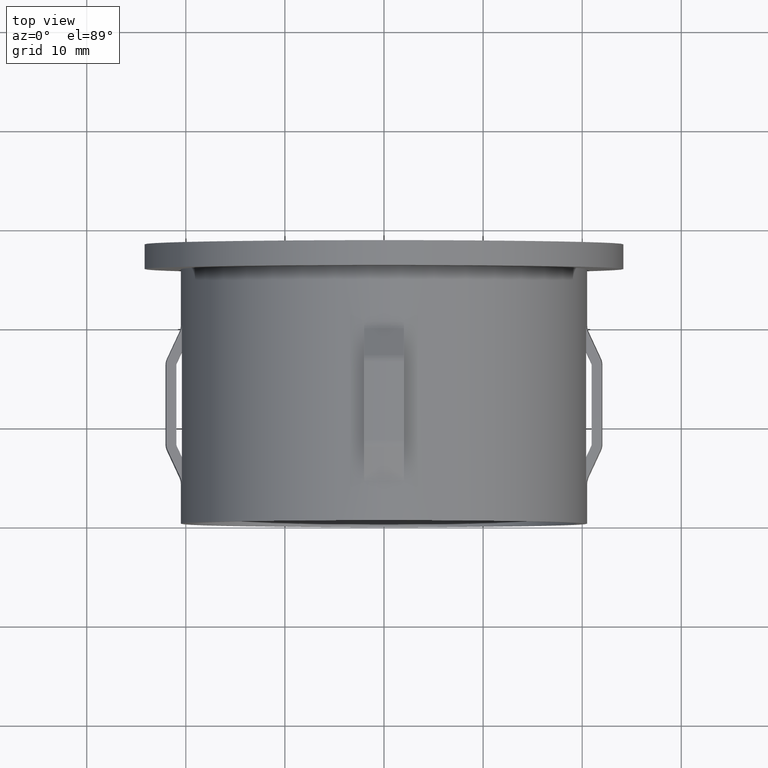
[diagram: clean part render]
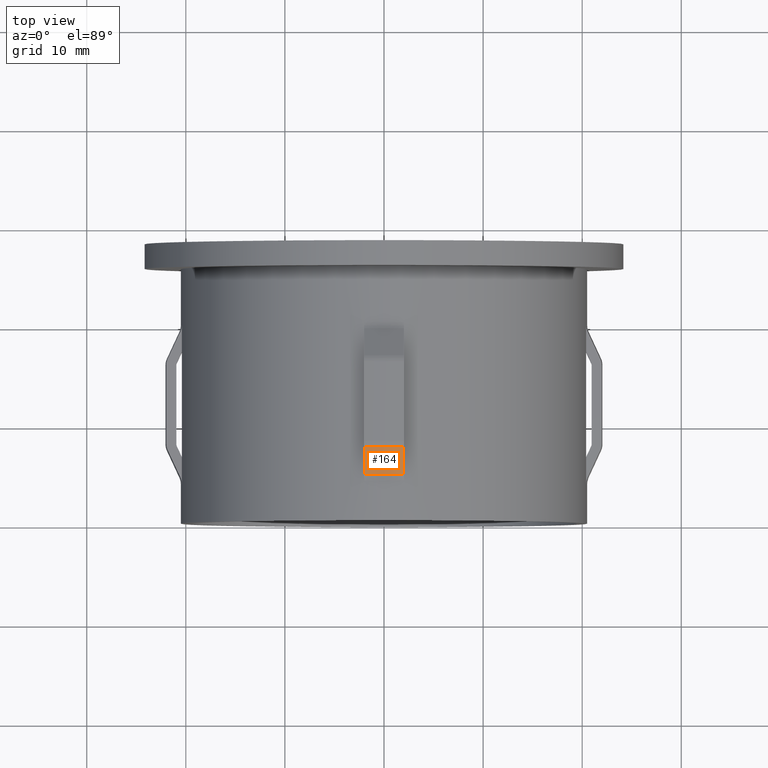
[diagram: same view with one face highlighted and labeled with its STEP entity id]
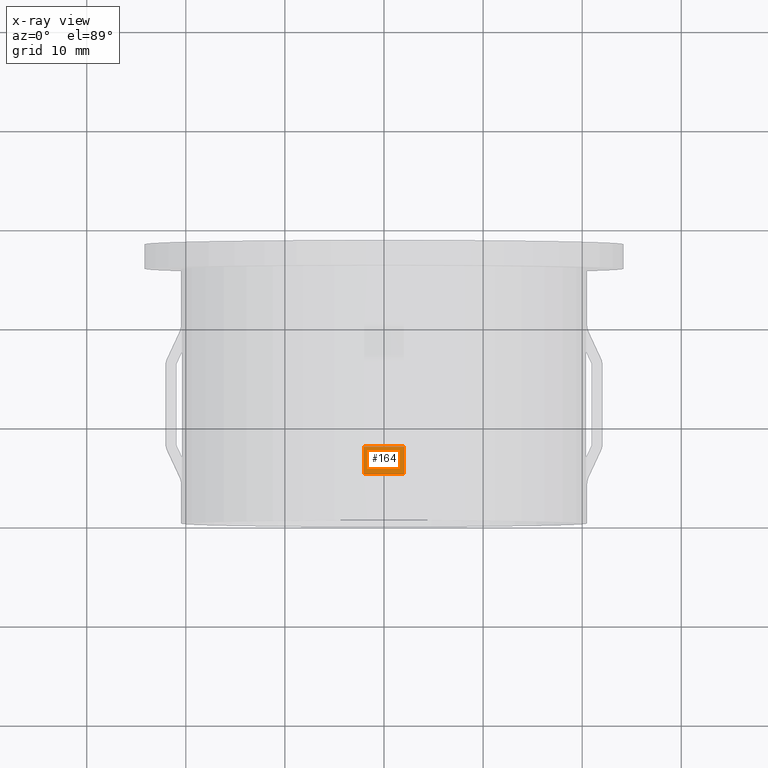
[diagram: x-ray of the same camera — body ghosted, the highlighted face saturated]
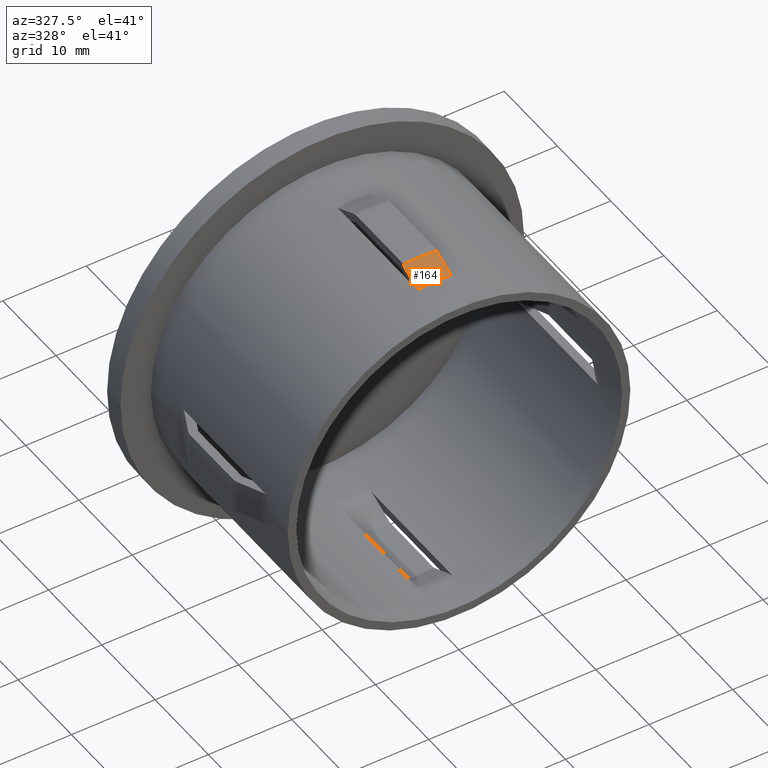
[diagram: same view with one face highlighted and labeled with its STEP entity id]
A machine part, top view. The second image highlights one B-rep face of the part: STEP entity #164.
The next image is the same camera in x-ray: the body ghosted, the highlighted face saturated — about 0% of this face is hidden behind the body in this view.
A second angle (auxiliary view) of the same face is appended — the face is thin or edge-on in the first view.
In plain terms, the highlighted conical surface has half-angle 24.912 deg.
Its self-contained STEP definition (entity closure, byte-faithful):
#164 = ADVANCED_FACE ( 'NONE', ( #7137 ), #8012, .T. ) ;
#514 = DIRECTION ( 'NONE',  ( -1.000000000000000000, -1.680968736714618500E-016, 0.0000000000000000000 ) ) ;
#604 = EDGE_CURVE ( 'NONE', #660, #7471, #1332, .T. ) ;
#660 = VERTEX_POINT ( 'NONE', #10709 ) ;
#932 = CARTESIAN_POINT ( 'NONE',  ( 2.000000000000004900, 4.631843609663175900, 20.54243878174399600 ) ) ;
#1025 = CARTESIAN_POINT ( 'NONE',  ( 2.000000000000004900, 5.791666624738636100, 21.08362248158814400 ) ) ;
#1122 = AXIS2_PLACEMENT_3D ( 'NONE', #1465, #4665, #12306 ) ;
#1205 = EDGE_CURVE ( 'NONE', #7471, #7848, #11738, .T. ) ;
#1332 = B_SPLINE_CURVE_WITH_KNOTS ( 'NONE', 3,
 ( #9605, #5256, #3165, #2020, #9659, #14131, #10808 ),
 .UNSPECIFIED., .F., .F.,
 ( 4, 3, 4 ),
 ( 0.005748589872255119800, 0.006158684684933029800, 0.008768012514493482900 ),
 .UNSPECIFIED. ) ;
#1465 = CARTESIAN_POINT ( 'NONE',  ( 3.795844060102767100E-015, 4.631843609663177700, 0.0000000000000000000 ) ) ;
#2020 = CARTESIAN_POINT ( 'NONE',  ( -1.999999999999996200, 5.003471096762877900, 20.71584805443751500 ) ) ;
#2133 = CARTESIAN_POINT ( 'NONE',  ( 2.000000000000004900, 5.003471096762878800, 20.71584805443751500 ) ) ;
#2238 = ORIENTED_EDGE ( 'NONE', *, *, #604, .F. ) ;
#2377 = EDGE_CURVE ( 'NONE', #3568, #7848, #2658, .T. ) ;
#2658 = B_SPLINE_CURVE_WITH_KNOTS ( 'NONE', 3,
 ( #932, #7543, #8723, #2133, #1025, #10880, #3135 ),
 .UNSPECIFIED., .F., .F.,
 ( 4, 3, 4 ),
 ( 0.005748589872255116400, 0.006158684684933026300, 0.008768012514493477700 ),
 .UNSPECIFIED. ) ;
#2729 = CARTESIAN_POINT ( 'NONE',  ( -1.999999999999995800, 7.368156390336815200, 21.81895976167198700 ) ) ;
#3135 = CARTESIAN_POINT ( 'NONE',  ( 2.000000000000004900, 7.368156390336815200, 21.81895976167198700 ) ) ;
#3165 = CARTESIAN_POINT ( 'NONE',  ( -1.999999999999996200, 4.879594404472018500, 20.65804681359365000 ) ) ;
#3568 = VERTEX_POINT ( 'NONE', #11098 ) ;
#4348 = AXIS2_PLACEMENT_3D ( 'NONE', #10423, #11522, #8369 ) ;
#4665 = DIRECTION ( 'NONE',  ( -1.714505518806297100E-016, 1.000000000000000000, -0.0000000000000000000 ) ) ;
#5256 = CARTESIAN_POINT ( 'NONE',  ( -1.999999999999996200, 4.755718568135789000, 20.60024373827389300 ) ) ;
#6892 = EDGE_LOOP ( 'NONE', ( #2238, #8243, #8206, #13894 ) ) ;
#7137 = FACE_OUTER_BOUND ( 'NONE', #6892, .T. ) ;
#7293 = CARTESIAN_POINT ( 'NONE',  ( 2.000000000000004900, 7.368156390336815200, 21.81895976167198700 ) ) ;
#7471 = VERTEX_POINT ( 'NONE', #2729 ) ;
#7543 = CARTESIAN_POINT ( 'NONE',  ( 2.000000000000004900, 4.755718568135789000, 20.60024373827389300 ) ) ;
#7848 = VERTEX_POINT ( 'NONE', #7293 ) ;
#8012 = CONICAL_SURFACE ( 'NONE', #11400, 20.63956857838117600, 0.4348000597357523100 ) ;
#8206 = ORIENTED_EDGE ( 'NONE', *, *, #2377, .T. ) ;
#8243 = ORIENTED_EDGE ( 'NONE', *, *, #11048, .T. ) ;
#8369 = DIRECTION ( 'NONE',  ( -1.000000000000000000, -1.583468113973485200E-016, 0.0000000000000000000 ) ) ;
#8454 = CIRCLE ( 'NONE', #1122, 20.63956857838117600 ) ;
#8723 = CARTESIAN_POINT ( 'NONE',  ( 2.000000000000004900, 4.879594404472019400, 20.65804681359365000 ) ) ;
#9605 = CARTESIAN_POINT ( 'NONE',  ( -1.999999999999996200, 4.631843609663175900, 20.54243878174399600 ) ) ;
#9659 = CARTESIAN_POINT ( 'NONE',  ( -1.999999999999996200, 5.791666624738636100, 21.08362248158814400 ) ) ;
#10423 = CARTESIAN_POINT ( 'NONE',  ( 3.326701723738251600E-015, 7.368156390336815200, 0.0000000000000000000 ) ) ;
#10709 = CARTESIAN_POINT ( 'NONE',  ( -1.999999999999996200, 4.631843609663175900, 20.54243878174399600 ) ) ;
#10808 = CARTESIAN_POINT ( 'NONE',  ( -1.999999999999995800, 7.368156390336815200, 21.81895976167198700 ) ) ;
#10880 = CARTESIAN_POINT ( 'NONE',  ( 2.000000000000004900, 6.579896722732108600, 21.45132282661965600 ) ) ;
#11048 = EDGE_CURVE ( 'NONE', #660, #3568, #8454, .T. ) ;
#11098 = CARTESIAN_POINT ( 'NONE',  ( 2.000000000000004900, 4.631843609663175900, 20.54243878174399600 ) ) ;
#11400 = AXIS2_PLACEMENT_3D ( 'NONE', #12408, #13680, #514 ) ;
#11522 = DIRECTION ( 'NONE',  ( -1.714505518806297100E-016, 1.000000000000000000, -0.0000000000000000000 ) ) ;
#11738 = CIRCLE ( 'NONE', #4348, 21.91043142161882100 ) ;
#12306 = DIRECTION ( 'NONE',  ( -1.000000000000000000, -1.680968736714618500E-016, 0.0000000000000000000 ) ) ;
#12408 = CARTESIAN_POINT ( 'NONE',  ( 3.795844060102767100E-015, 4.631843609663177700, 0.0000000000000000000 ) ) ;
#13680 = DIRECTION ( 'NONE',  ( -1.714505518806297100E-016, 1.000000000000000000, -0.0000000000000000000 ) ) ;
#13894 = ORIENTED_EDGE ( 'NONE', *, *, #1205, .F. ) ;
#14131 = CARTESIAN_POINT ( 'NONE',  ( -1.999999999999995800, 6.579896722732109500, 21.45132282661965600 ) ) ;